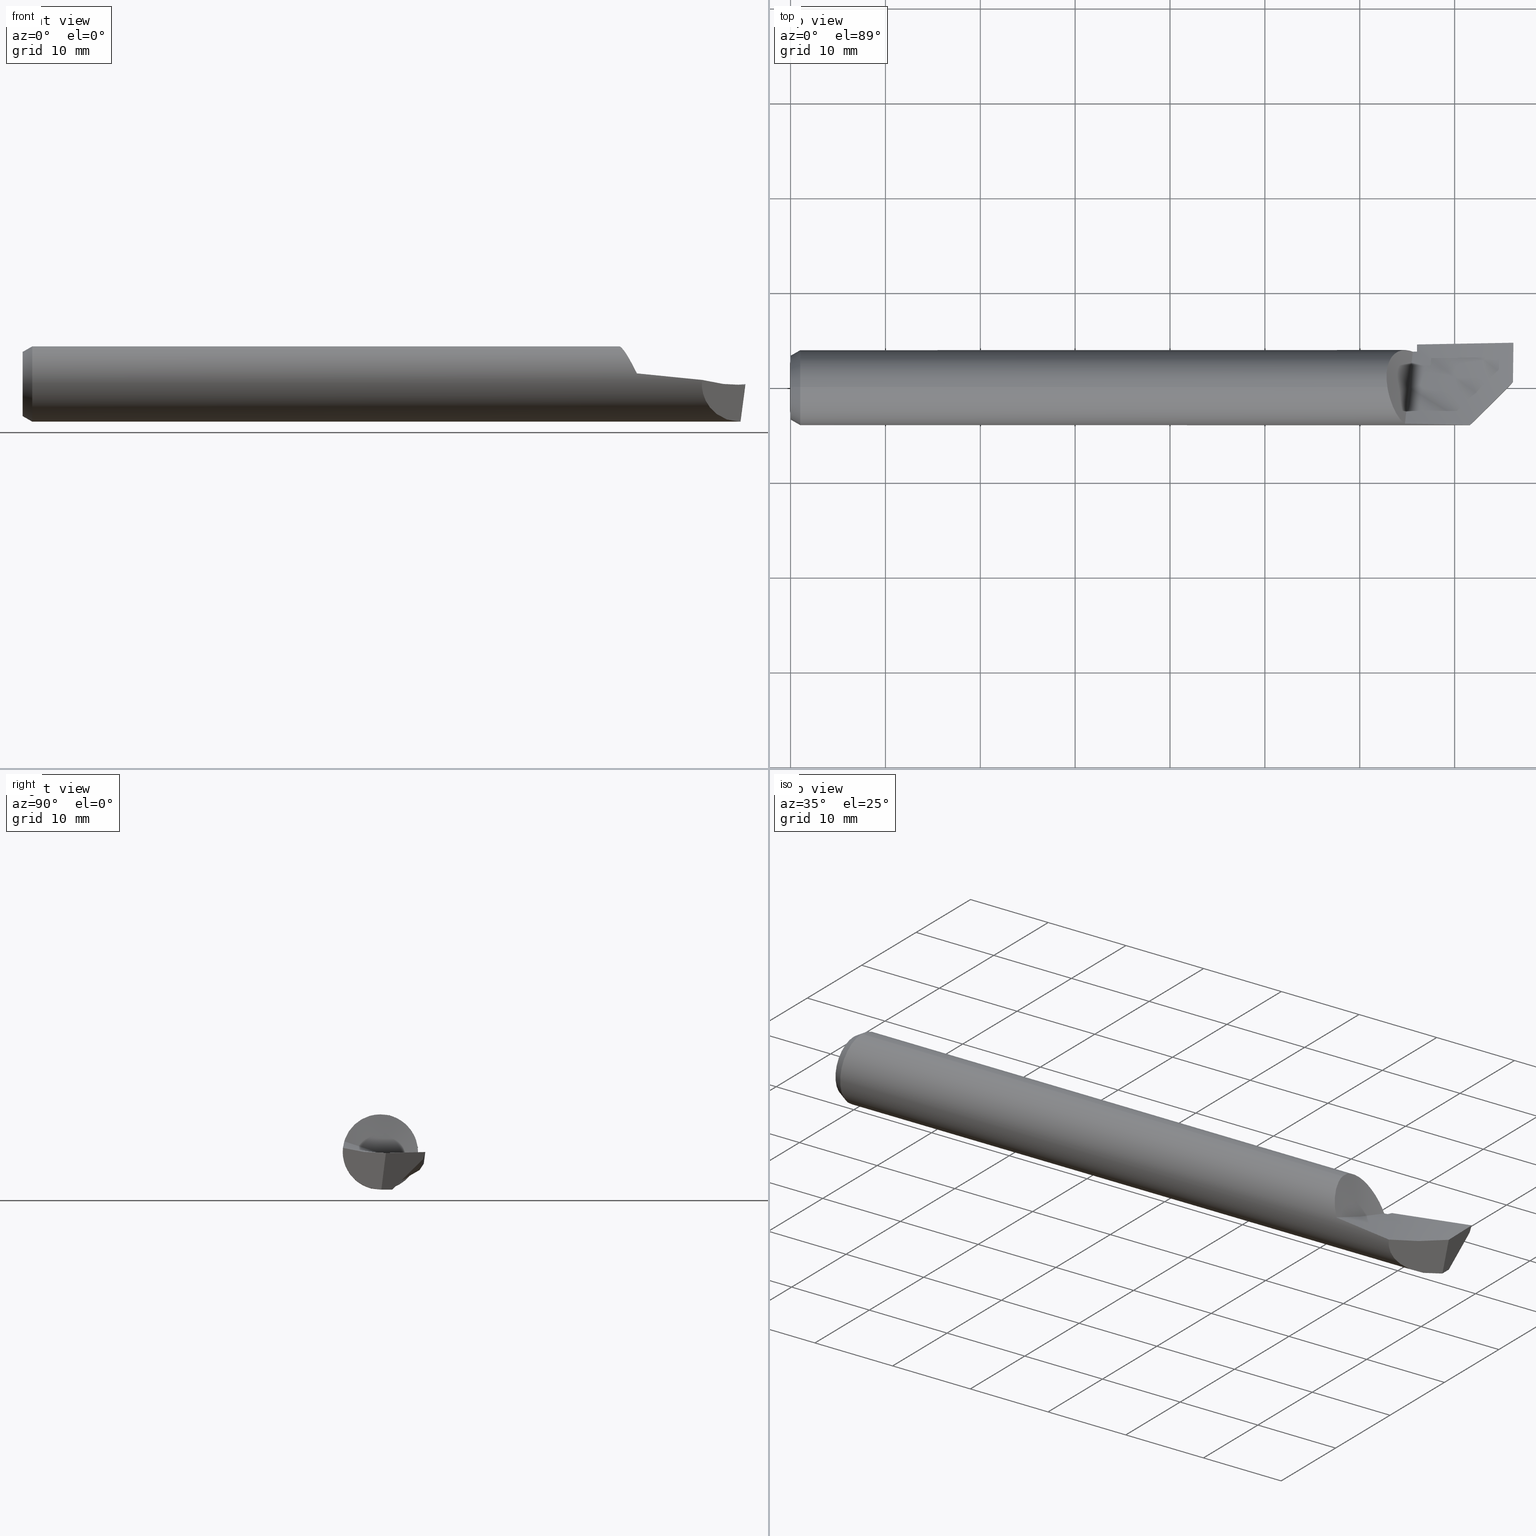
[diagram: canonical four-view strip — front | top / right | iso, engineering-drawing reading convention]
A machine part, canonical four-view strip (front | top / right | iso — engineering-drawing reading convention). The complete STEP part file that produces these views, byte-faithful:
ISO-10303-21;
HEADER;
FILE_DESCRIPTION (( 'STEP AP203' ),
    '1' );
FILE_NAME ('215772-HB360.STEP',
    '2024-08-07T22:41:28',
    ( '' ),
    ( '' ),
    'SwSTEP 2.0',
    'SolidWorks 2024',
    '' );
FILE_SCHEMA (( 'CONFIG_CONTROL_DESIGN' ));
ENDSEC;

DATA;
#1 = APPROVAL ( #636, 'UNSPECIFIED' ) ;
#2 = CARTESIAN_POINT ( 'NONE',  ( 2.128181818181820617, 0.1324743640790765620, -0.1207971729350410250 ) ) ;
#3 = CARTESIAN_POINT ( 'NONE',  ( 0.04000000000000000083, 0.000000000000000000, -0.1561500000000000110 ) ) ;
#4 = EDGE_LOOP ( 'NONE', ( #140, #310, #394, #269, #207, #154, #348 ) ) ;
#5 = CARTESIAN_POINT ( 'NONE',  ( 2.782045454545454266, 0.1724390602931637761, -0.05541315984177058035 ) ) ;
#6 = CARTESIAN_POINT ( 'NONE',  ( 2.804857864376268051, -0.1702863762866016761, -0.2000000000000000111 ) ) ;
#7 = LINE ( 'NONE', #101, #234 ) ;
#8 = VERTEX_POINT ( 'NONE', #78 ) ;
#9 = CARTESIAN_POINT ( 'NONE',  ( 3.000000000000000444, 0.1767524091130130426, -0.02999999999999999889 ) ) ;
#10 = DIRECTION ( 'NONE',  ( 0.000000000000000000, 0.000000000000000000, 1.000000000000000000 ) ) ;
#11 = CARTESIAN_POINT ( 'NONE',  ( 2.979167479753610959, -0.004181631245437337011, -0.1561499999999999833 ) ) ;
#12 = ORIENTED_EDGE ( 'NONE', *, *, #420, .F. ) ;
#13 = CARTESIAN_POINT ( 'NONE',  ( 2.560578031082944683, -0.05176212802823586950, 0.008916131412481789059 ) ) ;
#14 = APPROVAL_STATUS ( 'not_yet_approved' ) ;
#15 = APPROVAL ( #14, 'UNSPECIFIED' ) ;
#16 = CARTESIAN_POINT ( 'NONE',  ( 2.549711564589114410, -0.1497855914563588076, 0.04412594579240443349 ) ) ;
#17 = VERTEX_POINT ( 'NONE', #379 ) ;
#18 = CARTESIAN_POINT ( 'NONE',  ( 2.782045454545454266, -0.04184780308679218741, -0.2158262964618125335 ) ) ;
#19 = COORDINATED_UNIVERSAL_TIME_OFFSET ( 8, 0, .BEHIND. ) ;
#20 = CIRCLE ( 'NONE', #270, 0.1561500000000000110 ) ;
#21 = CARTESIAN_POINT ( 'NONE',  ( 2.499957748800047952, -0.08122262966647500471, 0.1334482376194530140 ) ) ;
#22 =( BOUNDED_SURFACE ( )  B_SPLINE_SURFACE ( 3, 2, ( 
 ( #569, #418, #618, #565, #324 ),
 ( #524, #204, #72, #271, #472 ),
 ( #24, #375, #306, #403, #605 ),
 ( #155, #548, #442, #493, #43 ) ),
 .UNSPECIFIED., .F., .F., .F. ) 
 B_SPLINE_SURFACE_WITH_KNOTS ( ( 4, 4 ),
 ( 3, 2, 3 ),
 ( 0.000000000000000000, 1.000000000000000000 ),
 ( 0.000000000000000000, 0.5000000000000000000, 1.000000000000000000 ),
 .UNSPECIFIED. ) 
 GEOMETRIC_REPRESENTATION_ITEM ( )  RATIONAL_B_SPLINE_SURFACE ( (
 ( 1.000000000000000000, 0.9898214418809326842, 1.000000000000000000, 0.9898214418809326842, 1.000000000000000000),
 ( 0.9988253187909595932, 0.9886587172328499262, 0.9988253187909595932, 0.9886587172328499262, 0.9988253187909595932),
 ( 0.9988253187909595932, 0.9886587172328499262, 0.9988253187909595932, 0.9886587172328499262, 0.9988253187909595932),
 ( 1.000000000000000000, 0.9898214418809326842, 1.000000000000000000, 0.9898214418809326842, 1.000000000000000000) ) ) 
 REPRESENTATION_ITEM ( '' )  SURFACE ( )  );
#23 = ORIENTED_EDGE ( 'NONE', *, *, #346, .F. ) ;
#24 = CARTESIAN_POINT ( 'NONE',  ( 3.000000000000000444, 0.07920971282789854295, -0.006742037143730742789 ) ) ;
#25 = PERSON_AND_ORGANIZATION_ROLE ( 'creator' ) ;
#26 = ADVANCED_FACE ( 'NONE', ( #275 ), #567, .T. ) ;
#27 = CARTESIAN_POINT ( 'NONE',  ( 2.546193584208285898, 0.1559074537376650971, 0.008704202966175364833 ) ) ;
#28 = CARTESIAN_POINT ( 'NONE',  ( 2.474000000000000643, 0.06150111405910223261, 0.1435285179659056831 ) ) ;
#29 = PLANE ( 'NONE',  #308 ) ;
#30 = CARTESIAN_POINT ( 'NONE',  ( 2.500135511449753434, 0.1325474058684388834, 0.08268720822116516767 ) ) ;
#31 = COORDINATED_UNIVERSAL_TIME_OFFSET ( 8, 0, .BEHIND. ) ;
#32 = PLANE ( 'NONE',  #450 ) ;
#33 = CALENDAR_DATE ( 2024, 7, 8 ) ;
#34 = AXIS2_PLACEMENT_3D ( 'NONE', #345, #596, #641 ) ;
#35 = FACE_OUTER_BOUND ( 'NONE', #604, .T. ) ;
#36 = ORIENTED_EDGE ( 'NONE', *, *, #575, .F. ) ;
#37 =( BOUNDED_CURVE ( )  B_SPLINE_CURVE ( 1, ( #255, #169 ),
 .UNSPECIFIED., .F., .T. ) 
 B_SPLINE_CURVE_WITH_KNOTS ( ( 2, 2 ),
 ( 0.001657282124398283714, 0.001764347607735772608 ),
 .UNSPECIFIED. ) 
 CURVE ( )  GEOMETRIC_REPRESENTATION_ITEM ( )  RATIONAL_B_SPLINE_CURVE ( ( 0.9984501799089120500, 0.9984501799089120500 ) ) 
 REPRESENTATION_ITEM ( '' )  );
#38 = CARTESIAN_POINT ( 'NONE',  ( 2.476619656254255730, 0.002176942633586646976, 0.1561357713750955445 ) ) ;
#39 = ORIENTED_EDGE ( 'NONE', *, *, #231, .F. ) ;
#40 = B_SPLINE_CURVE_WITH_KNOTS ( 'NONE', 3,
 ( #478, #568, #176, #477, #174, #273, #627 ),
 .UNSPECIFIED., .F., .F.,
 ( 4, 3, 4 ),
 ( 5.280409643342518424E-18, 0.0004086313786607042578, 0.0008172652846989271556 ),
 .UNSPECIFIED. ) ;
#41 = DIRECTION ( 'NONE',  ( 1.000000000000000000, 0.000000000000000000, 0.000000000000000000 ) ) ;
#42 = EDGE_CURVE ( 'NONE', #553, #341, #40, .T. ) ;
#43 = CARTESIAN_POINT ( 'NONE',  ( 2.128181818181820173, 0.2011086442068616142, -0.1260848984708513587 ) ) ;
#44 = CARTESIAN_POINT ( 'NONE',  ( 2.600000000000000089, 0.1801148075100197643, -0.04833233269983021330 ) ) ;
#45 = VECTOR ( 'NONE', #309, 39.37007874015748143 ) ;
#46 = EDGE_CURVE ( 'NONE', #539, #244, #427, .T. ) ;
#47 = EDGE_LOOP ( 'NONE', ( #634, #608, #302, #519, #550 ) ) ;
#48 = CARTESIAN_POINT ( 'NONE',  ( 2.599999999999999645, 0.1629539527568800439, -0.07474906961402545680 ) ) ;
#49 = CARTESIAN_POINT ( 'NONE',  ( 2.505010119772321797, -0.09244226076251919888, 0.1258585901727118650 ) ) ;
#50 = CC_DESIGN_DATE_AND_TIME_ASSIGNMENT ( #73, #384, ( #129 ) ) ;
#51 = ORIENTED_EDGE ( 'NONE', *, *, #435, .T. ) ;
#52 = CARTESIAN_POINT ( 'NONE',  ( 2.819928967951467413, -0.1552152727114021191, 0.01705994188532067996 ) ) ;
#53 = CARTESIAN_POINT ( 'NONE',  ( 2.968777685652530085, -0.006366555010340419797, -0.2406095737322578310 ) ) ;
#54 = AXIS2_PLACEMENT_3D ( 'NONE', #638, #290, #540 ) ;
#55 = ORIENTED_EDGE ( 'NONE', *, *, #421, .F. ) ;
#56 = CARTESIAN_POINT ( 'NONE',  ( 2.580000000000000515, 0.000000000000000000, 0.000000000000000000 ) ) ;
#57 = DIRECTION ( 'NONE',  ( -1.000000000000000000, -0.000000000000000000, -0.000000000000000000 ) ) ;
#58 = PLANE ( 'NONE',  #601 ) ;
#59 = ORIENTED_EDGE ( 'NONE', *, *, #90, .F. ) ;
#60 = CARTESIAN_POINT ( 'NONE',  ( 2.474000000000001087, -0.1123263664135756568, 0.1989575721241374495 ) ) ;
#61 = LINE ( 'NONE', #11, #298 ) ;
#62 = EDGE_LOOP ( 'NONE', ( #262, #487, #446, #94 ) ) ;
#63 = CARTESIAN_POINT ( 'NONE',  ( 2.975144240662870310, -8.537024980200822558E-17, -0.1561499999999999833 ) ) ;
#64 = VERTEX_POINT ( 'NONE', #428 ) ;
#65 = EDGE_CURVE ( 'NONE', #553, #370, #175, .T. ) ;
#66 = CARTESIAN_POINT ( 'NONE',  ( 2.346136363636365019, 0.1498423755230924859, -0.1017502348696824044 ) ) ;
#67 = DIRECTION ( 'NONE',  ( 0.000000000000000000, 0.000000000000000000, 1.000000000000000000 ) ) ;
#68 = CARTESIAN_POINT ( 'NONE',  ( 2.498284257610984493, -0.07716589290149372671, 0.1358296653781201901 ) ) ;
#69 = VERTEX_POINT ( 'NONE', #227 ) ;
#70 = ADVANCED_FACE ( 'NONE', ( #425 ), #29, .F. ) ;
#71 = EDGE_CURVE ( 'NONE', #244, #98, #516, .T. ) ;
#72 = CARTESIAN_POINT ( 'NONE',  ( 2.564090909090910309, -0.07790061426321408244, 0.01584701765442171964 ) ) ;
#73 = DATE_AND_TIME ( #33, #164 ) ;
#74 = AXIS2_PLACEMENT_3D ( 'NONE', #497, #251, #10 ) ;
#75 = CARTESIAN_POINT ( 'NONE',  ( 2.506199381127250714, 0.1385826786866950211, 0.07199824985563685331 ) ) ;
#76 = APPROVAL_DATE_TIME ( #562, #15 ) ;
#77 = CARTESIAN_POINT ( 'NONE',  ( 2.570103109311277834, 0.1548465186791669612, -0.02667729090926552332 ) ) ;
#78 = CARTESIAN_POINT ( 'NONE',  ( 2.979239712941758267, 0.004095472278887343082, -0.1561500000000000665 ) ) ;
#79 = B_SPLINE_SURFACE_WITH_KNOTS ( 'NONE', 1, 3, ( 
 ( #60, #646, #396, #404 ),
 ( #307, #591, #95, #241 ) ),
 .UNSPECIFIED., .F., .F., .F.,
 ( 2, 2 ),
 ( 4, 4 ),
 ( 0.000000000000000000, 1.000000000000000000 ),
 ( 0.01624622364842142827, 0.02484700585296300765 ),
 .UNSPECIFIED. ) ;
#80 =( GEOMETRIC_REPRESENTATION_CONTEXT ( 3 ) GLOBAL_UNCERTAINTY_ASSIGNED_CONTEXT ( ( #229 ) ) GLOBAL_UNIT_ASSIGNED_CONTEXT ( ( #566, #180, #264 ) ) REPRESENTATION_CONTEXT ( 'NONE', 'WORKASPACE' ) );
#81 = CARTESIAN_POINT ( 'NONE',  ( 2.474000000000000643, 0.02547145798119286250, 0.1540585191682444233 ) ) ;
#82 = CARTESIAN_POINT ( 'NONE',  ( 2.512539920035942842, 0.1436373927575289589, 0.06124721510615294823 ) ) ;
#83 =( BOUNDED_CURVE ( )  B_SPLINE_CURVE ( 2, ( #111, #376, #233 ),
 .UNSPECIFIED., .F., .F. ) 
 B_SPLINE_CURVE_WITH_KNOTS ( ( 3, 3 ),
 ( 1.391586369554531268E-17, 0.01023568902732469380 ),
 .UNSPECIFIED. ) 
 CURVE ( )  GEOMETRIC_REPRESENTATION_ITEM ( )  RATIONAL_B_SPLINE_CURVE ( ( 0.9996624973940649861, 0.9903321612512544503, 0.9981132003712964718 ) ) 
 REPRESENTATION_ITEM ( '' )  );
#84 = CIRCLE ( 'NONE', #138, 0.1330559892324149063 ) ;
#85 = CARTESIAN_POINT ( 'NONE',  ( 2.985096961511465974, 0.09213733410839580751, -0.1147056598190209775 ) ) ;
#86 = VERTEX_POINT ( 'NONE', #44 ) ;
#87 = EDGE_CURVE ( 'NONE', #211, #89, #476, .T. ) ;
#88 = CARTESIAN_POINT ( 'NONE',  ( 2.600000000000000089, 0.000000000000000000, -0.1561499999999999833 ) ) ;
#89 = VERTEX_POINT ( 'NONE', #88 ) ;
#90 = EDGE_CURVE ( 'NONE', #650, #109, #189, .T. ) ;
#91 = CARTESIAN_POINT ( 'NONE',  ( 2.599999999999999645, 0.1629539527568800439, -0.07474906961402545680 ) ) ;
#92 = ORIENTED_EDGE ( 'NONE', *, *, #119, .F. ) ;
#93 = CARTESIAN_POINT ( 'NONE',  ( 2.589990705502679180, 0.02455143824769707300, -0.1542112376162947385 ) ) ;
#94 = ORIENTED_EDGE ( 'NONE', *, *, #274, .F. ) ;
#95 = CARTESIAN_POINT ( 'NONE',  ( 2.573012375995140655, 0.06108246571269328878, -0.02440637148621309024 ) ) ;
#96 = CARTESIAN_POINT ( 'NONE',  ( 2.582283871512121465, 0.1499736465472803204, -0.04348250040316673642 ) ) ;
#97 = CIRCLE ( 'NONE', #630, 0.1561500000000000110 ) ;
#98 = VERTEX_POINT ( 'NONE', #96 ) ;
#99 = CARTESIAN_POINT ( 'NONE',  ( 2.782045454545454266, 0.1724390602931637761, -0.05541315984177058035 ) ) ;
#100 = CC_DESIGN_PERSON_AND_ORGANIZATION_ASSIGNMENT ( #419, #125, ( #215 ) ) ;
#101 = CARTESIAN_POINT ( 'NONE',  ( 2.737572120331434267, -0.2375721203314352381, -0.1561499999999999833 ) ) ;
#102 = ORIENTED_EDGE ( 'NONE', *, *, #535, .F. ) ;
#103 = DIRECTION ( 'NONE',  ( -0.7071067811865454633, 0.7071067811865495711, 0.000000000000000000 ) ) ;
#104 = DIRECTION ( 'NONE',  ( 0.000000000000000000, -0.8726360304336866491, -0.4883711277183958588 ) ) ;
#105 = ORIENTED_EDGE ( 'NONE', *, *, #535, .T. ) ;
#106 = DIRECTION ( 'NONE',  ( 0.8660254037844379305, 6.123233995736780827E-17, 0.5000000000000012212 ) ) ;
#107 = CARTESIAN_POINT ( 'NONE',  ( 2.564090909090910309, -0.1501971394746929034, 0.04270411916460870039 ) ) ;
#108 = CARTESIAN_POINT ( 'NONE',  ( 2.474000000000000643, 1.349892571595077140, 3.760676803801734192 ) ) ;
#109 = VERTEX_POINT ( 'NONE', #488 ) ;
#110 = CARTESIAN_POINT ( 'NONE',  ( 2.128181818181820617, -0.1264235424471495395, -0.1771169651606577522 ) ) ;
#111 = CARTESIAN_POINT ( 'NONE',  ( 3.000000000000000444, 0.1864868806062437434, -4.037734218147528297E-05 ) ) ;
#112 = LOCAL_TIME ( 15, 41, 28.00000000000000000, #19 ) ;
#113 = CARTESIAN_POINT ( 'NONE',  ( 2.540498801430727926, -0.1443827811110817705, 0.06246705499708574139 ) ) ;
#114 = EDGE_CURVE ( 'NONE', #406, #539, #392, .T. ) ;
#115 = ORIENTED_EDGE ( 'NONE', *, *, #274, .T. ) ;
#116 = LINE ( 'NONE', #222, #327 ) ;
#117 = PERSON_AND_ORGANIZATION ( #609, #332 ) ;
#118 = CARTESIAN_POINT ( 'NONE',  ( 2.517551476721962889, -0.1163640086471308260, 0.1054476979916383617 ) ) ;
#119 = EDGE_CURVE ( 'NONE', #370, #86, #536, .T. ) ;
#120 = ORIENTED_EDGE ( 'NONE', *, *, #87, .F. ) ;
#121 = CARTESIAN_POINT ( 'NONE',  ( 2.582283871512121465, 0.1499736465472803204, -0.04348250040316673642 ) ) ;
#122 = DIRECTION ( 'NONE',  ( 1.000000000000000000, 0.000000000000000000, 0.000000000000000000 ) ) ;
#123 = CC_DESIGN_PERSON_AND_ORGANIZATION_ASSIGNMENT ( #213, #615, ( #279 ) ) ;
#124 = CARTESIAN_POINT ( 'NONE',  ( 2.544874160947927066, 0.1557873653749910214, 0.01066923407101593585 ) ) ;
#125 = PERSON_AND_ORGANIZATION_ROLE ( 'design_owner' ) ;
#126 = CARTESIAN_POINT ( 'NONE',  ( 2.486355294223542955, 0.1113227750659395027, 0.1095010359794384297 ) ) ;
#127 = CARTESIAN_POINT ( 'NONE',  ( 0.04000000000000000083, 0.000000000000000000, 0.000000000000000000 ) ) ;
#128 = CARTESIAN_POINT ( 'NONE',  ( 2.474000000000000643, 0.03748155904931676358, 0.1505493601599168507 ) ) ;
#129 = PRODUCT_DEFINITION ( 'UNKNOWN', '', #532, #538 ) ;
#130 =( BOUNDED_CURVE ( )  B_SPLINE_CURVE ( 2, ( #202, #647, #501 ),
 .UNSPECIFIED., .F., .T. ) 
 B_SPLINE_CURVE_WITH_KNOTS ( ( 3, 3 ),
 ( 0.4584876418422945132, 0.4789440018135112109 ),
 .UNSPECIFIED. ) 
 CURVE ( )  GEOMETRIC_REPRESENTATION_ITEM ( )  RATIONAL_B_SPLINE_CURVE ( ( 0.9979508522174694862, 0.9982979626574873810, 0.9986791308289277858 ) ) 
 REPRESENTATION_ITEM ( '' )  );
#131 = AXIS2_PLACEMENT_3D ( 'NONE', #551, #200, #354 ) ;
#132 = LOCAL_TIME ( 15, 41, 28.00000000000000000, #143 ) ;
#133 = DIRECTION ( 'NONE',  ( 1.000000000000000000, 0.000000000000000000, 0.000000000000000000 ) ) ;
#134 = CARTESIAN_POINT ( 'NONE',  ( 2.476785514785512454, 0.001089468900831919596, 0.1561471461142987516 ) ) ;
#135 = ADVANCED_FACE ( 'NONE', ( #388 ), #542, .F. ) ;
#136 = EDGE_CURVE ( 'NONE', #167, #144, #572, .T. ) ;
#137 = EDGE_LOOP ( 'NONE', ( #507, #55, #150, #315, #492 ) ) ;
#138 = AXIS2_PLACEMENT_3D ( 'NONE', #438, #633, #141 ) ;
#139 = CARTESIAN_POINT ( 'NONE',  ( 2.600000000000000089, 0.02556539549897754102, -0.1540429584660748530 ) ) ;
#140 = ORIENTED_EDGE ( 'NONE', *, *, #165, .F. ) ;
#141 = DIRECTION ( 'NONE',  ( 0.000000000000000000, 0.000000000000000000, 1.000000000000000000 ) ) ;
#142 = CC_DESIGN_APPROVAL ( #1, ( #279 ) ) ;
#143 = COORDINATED_UNIVERSAL_TIME_OFFSET ( 8, 0, .BEHIND. ) ;
#144 = VERTEX_POINT ( 'NONE', #347 ) ;
#145 = CARTESIAN_POINT ( 'NONE',  ( 2.579999513120112553, 0.1192716980534744009, -0.1007823622599925417 ) ) ;
#146 = DIRECTION ( 'NONE',  ( 0.1218739150664907706, 0.000000000000000000, 0.9925455903012041503 ) ) ;
#147 = CALENDAR_DATE ( 2024, 7, 8 ) ;
#148 = DIRECTION ( 'NONE',  ( 0.000000000000000000, -1.000000000000000000, -0.000000000000000000 ) ) ;
#149 = CARTESIAN_POINT ( 'NONE',  ( 2.501823410091131628, -0.08546690293869278754, 0.1306840455922446131 ) ) ;
#150 = ORIENTED_EDGE ( 'NONE', *, *, #71, .F. ) ;
#151 = CARTESIAN_POINT ( 'NONE',  ( 2.589990705502679624, 0.1199397604736753414, -0.09999166357600632049 ) ) ;
#152 = CARTESIAN_POINT ( 'NONE',  ( 2.819928967951467413, -0.1552152727114021191, 0.01705994188532067996 ) ) ;
#153 = EDGE_CURVE ( 'NONE', #211, #557, #353, .T. ) ;
#154 = ORIENTED_EDGE ( 'NONE', *, *, #592, .T. ) ;
#155 = CARTESIAN_POINT ( 'NONE',  ( 3.000000000000000444, 0.2373499999999985066, 0.002658175526120084165 ) ) ;
#156 = CARTESIAN_POINT ( 'NONE',  ( 0.04000000000000000083, 0.000000000000000000, 0.1561500000000000110 ) ) ;
#157 = FACE_OUTER_BOUND ( 'NONE', #203, .T. ) ;
#158 = VERTEX_POINT ( 'NONE', #145 ) ;
#159 = CARTESIAN_POINT ( 'NONE',  ( 2.556905971611344253, -0.1499947349777528416, 0.04341600778453380549 ) ) ;
#160 = EDGE_CURVE ( 'NONE', #109, #650, #84, .T. ) ;
#161 = DIRECTION ( 'NONE',  ( 0.000000000000000000, -0.000000000000000000, 1.000000000000000000 ) ) ;
#162 = ORIENTED_EDGE ( 'NONE', *, *, #328, .F. ) ;
#163 = DIRECTION ( 'NONE',  ( -1.000000000000000000, -0.000000000000000000, -0.000000000000000000 ) ) ;
#164 = LOCAL_TIME ( 15, 41, 28.00000000000000000, #31 ) ;
#165 = EDGE_CURVE ( 'NONE', #341, #167, #178, .T. ) ;
#166 = CARTESIAN_POINT ( 'NONE',  ( 2.502877942230568031, -0.08783408679770984828, 0.1291095507297915501 ) ) ;
#167 = VERTEX_POINT ( 'NONE', #444 ) ;
#168 = B_SPLINE_CURVE_WITH_KNOTS ( 'NONE', 3,
 ( #272, #570, #367, #219 ),
 .UNSPECIFIED., .F., .F.,
 ( 4, 4 ),
 ( 0.0005095947452886268611, 0.01017712462416844182 ),
 .UNSPECIFIED. ) ;
#169 = CARTESIAN_POINT ( 'NONE',  ( 2.599999999999999645, 0.02556539549897754102, -0.1540429584660748530 ) ) ;
#170 = CARTESIAN_POINT ( 'NONE',  ( 0.000000000000000000, 0.000000000000000000, 0.000000000000000000 ) ) ;
#171 = CARTESIAN_POINT ( 'NONE',  ( 2.511672470574308313, 0.1430136215965724933, 0.06269466459209889486 ) ) ;
#172 = AXIS2_PLACEMENT_3D ( 'NONE', #127, #133, #624 ) ;
#173 = CARTESIAN_POINT ( 'NONE',  ( 2.571411973264259299, 0.04841661111627026254, -0.02036257395250182928 ) ) ;
#174 = CARTESIAN_POINT ( 'NONE',  ( 2.998726420138195792, 0.1832357286974946597, -0.01018139235324622485 ) ) ;
#175 =( BOUNDED_CURVE ( )  B_SPLINE_CURVE ( 2, ( #527, #230, #280 ),
 .UNSPECIFIED., .F., .T. ) 
 B_SPLINE_CURVE_WITH_KNOTS ( ( 3, 3 ),
 ( 0.004424341884183831224, 0.4584876418422946243 ),
 .UNSPECIFIED. ) 
 CURVE ( )  GEOMETRIC_REPRESENTATION_ITEM ( )  RATIONAL_B_SPLINE_CURVE ( ( 0.9998214602619788227, 0.9907416250752665299, 0.9984501799089120500 ) ) 
 REPRESENTATION_ITEM ( '' )  );
#176 = CARTESIAN_POINT ( 'NONE',  ( 2.997453422640945941, 0.1799655222702826463, -0.02031631032486567665 ) ) ;
#177 = CARTESIAN_POINT ( 'NONE',  ( 2.474000000000000643, 0.04949152363394359461, 0.1470393756611323155 ) ) ;
#178 = B_SPLINE_CURVE_WITH_KNOTS ( 'NONE', 3,
 ( #642, #196, #340, #545 ),
 .UNSPECIFIED., .F., .F.,
 ( 4, 4 ),
 ( 1.050051182065026517E-16, 0.004157109554051055880 ),
 .UNSPECIFIED. ) ;
#179 = CARTESIAN_POINT ( 'NONE',  ( 2.530426422836763667, 0.1527701578465625876, 0.03262291395069640693 ) ) ;
#180 =( NAMED_UNIT ( * ) PLANE_ANGLE_UNIT ( ) SI_UNIT ( $, .RADIAN. ) );
#181 = VECTOR ( 'NONE', #621, 39.37007874015748143 ) ;
#182 = ADVANCED_FACE ( 'NONE', ( #593 ), #32, .F. ) ;
#183 = CARTESIAN_POINT ( 'NONE',  ( 0.04000000000000000083, 0.000000000000000000, 0.000000000000000000 ) ) ;
#184 = COORDINATED_UNIVERSAL_TIME_OFFSET ( 8, 0, .BEHIND. ) ;
#185 = CC_DESIGN_PERSON_AND_ORGANIZATION_ASSIGNMENT ( #525, #537, ( #129 ) ) ;
#186 = PLANE ( 'NONE',  #252 ) ;
#187 = DATE_AND_TIME ( #147, #192 ) ;
#188 = ORIENTED_EDGE ( 'NONE', *, *, #390, .F. ) ;
#189 = CIRCLE ( 'NONE', #276, 0.1330559892324149063 ) ;
#190 = CARTESIAN_POINT ( 'NONE',  ( 0.000000000000000000, 0.000000000000000000, 0.000000000000000000 ) ) ;
#191 = DIRECTION ( 'NONE',  ( 0.000000000000000000, 0.000000000000000000, -1.000000000000000000 ) ) ;
#192 = LOCAL_TIME ( 15, 41, 28.00000000000000000, #643 ) ;
#193 = DATE_AND_TIME ( #594, #132 ) ;
#194 = EDGE_LOOP ( 'NONE', ( #583, #197 ) ) ;
#195 = DIRECTION ( 'NONE',  ( -0.7071067811865495711, -0.7071067811865454633, 0.000000000000000000 ) ) ;
#196 = CARTESIAN_POINT ( 'NONE',  ( 2.999200075335385574, 0.1319941842925820563, -0.002682091860404221123 ) ) ;
#197 = ORIENTED_EDGE ( 'NONE', *, *, #46, .T. ) ;
#198 = CARTESIAN_POINT ( 'NONE',  ( 2.691375166124812424, -0.1537828221736176615, 0.03009270614455665169 ) ) ;
#199 = ORIENTED_EDGE ( 'NONE', *, *, #395, .T. ) ;
#200 = DIRECTION ( 'NONE',  ( -1.000000000000000000, 0.000000000000000000, 0.000000000000000000 ) ) ;
#201 = ADVANCED_FACE ( 'NONE', ( #232 ), #622, .T. ) ;
#202 = CARTESIAN_POINT ( 'NONE',  ( 2.600000000000000533, 0.1504703987832132495, -0.04173106265146870469 ) ) ;
#203 = EDGE_LOOP ( 'NONE', ( #162, #199, #115, #319, #460, #617, #12 ) ) ;
#204 = CARTESIAN_POINT ( 'NONE',  ( 2.782045454545455154, -0.08017907142647504037, 0.004646600234496320661 ) ) ;
#205 = PLANE ( 'NONE',  #496 ) ;
#206 = PLANE ( 'NONE',  #382 ) ;
#207 = ORIENTED_EDGE ( 'NONE', *, *, #421, .T. ) ;
#208 = CARTESIAN_POINT ( 'NONE',  ( 2.564090909090910309, -0.07140288522278762096, -0.2055601114381612471 ) ) ;
#209 = CARTESIAN_POINT ( 'NONE',  ( 2.549711564589114410, -0.1497855914563588076, 0.04412594579240443349 ) ) ;
#210 = DIRECTION ( 'NONE',  ( -0.008726535498366603735, -0.9999619230641711987, 0.000000000000000000 ) ) ;
#211 = VERTEX_POINT ( 'NONE', #139 ) ;
#212 = CARTESIAN_POINT ( 'NONE',  ( 2.549711564589114410, -0.1497855914563588076, 0.04412594579240443349 ) ) ;
#213 = PERSON_AND_ORGANIZATION ( #609, #332 ) ;
#214 = CARTESIAN_POINT ( 'NONE',  ( 2.532224346154069661, -0.1359750068588518879, 0.07855314780389449636 ) ) ;
#215 = PRODUCT ( '215772-HB360', '215772-HB360', '', ( #372 ) ) ;
#216 = ORIENTED_EDGE ( 'NONE', *, *, #346, .T. ) ;
#217 = VECTOR ( 'NONE', #57, 39.37007874015748143 ) ;
#218 = APPROVAL ( #521, 'UNSPECIFIED' ) ;
#219 = CARTESIAN_POINT ( 'NONE',  ( 2.979633204848194605, 0.04918517867426422385, -0.1561499999999999833 ) ) ;
#220 = CARTESIAN_POINT ( 'NONE',  ( 2.533383541282527851, 0.1536844611678430672, 0.02805558010066474747 ) ) ;
#221 =( BOUNDED_CURVE ( )  B_SPLINE_CURVE ( 1, ( #297, #48 ),
 .UNSPECIFIED., .F., .T. ) 
 B_SPLINE_CURVE_WITH_KNOTS ( ( 2, 2 ),
 ( 0.004551200217440484058, 0.005793522353016800422 ),
 .UNSPECIFIED. ) 
 CURVE ( )  GEOMETRIC_REPRESENTATION_ITEM ( )  RATIONAL_B_SPLINE_CURVE ( ( 0.9984501799089120500, 0.9984501799089120500 ) ) 
 REPRESENTATION_ITEM ( '' )  );
#222 = CARTESIAN_POINT ( 'NONE',  ( 0.04000000000000000083, 1.912285976868592483E-17, 0.1561500000000000110 ) ) ;
#223 = CALENDAR_DATE ( 2024, 7, 8 ) ;
#224 = B_SPLINE_CURVE_WITH_KNOTS ( 'NONE', 3,
 ( #121, #173, #13, #212 ),
 .UNSPECIFIED., .F., .F.,
 ( 4, 4 ),
 ( 0.000000000000000000, 1.000000000000000000 ),
 .UNSPECIFIED. ) ;
#225 = CARTESIAN_POINT ( 'NONE',  ( 2.558134112634480761, 0.1568671884456191989, -0.009044752416295072719 ) ) ;
#226 = VECTOR ( 'NONE', #455, 39.37007874015748854 ) ;
#227 = CARTESIAN_POINT ( 'NONE',  ( 2.600000000000000533, 0.1504703987832132495, -0.04173106265146870469 ) ) ;
#228 = CARTESIAN_POINT ( 'NONE',  ( 2.483884539742758246, 0.1057931689309994649, 0.1149010584309875377 ) ) ;
#229 = UNCERTAINTY_MEASURE_WITH_UNIT (LENGTH_MEASURE( 1.000000000000000082E-05 ), #566, 'distance_accuracy_value', 'NONE');
#230 = CARTESIAN_POINT ( 'NONE',  ( 2.798363536927614525, 0.1727047912246200134, -0.05349211378545535439 ) ) ;
#231 = EDGE_CURVE ( 'NONE', #339, #553, #533, .T. ) ;
#232 = FACE_OUTER_BOUND ( 'NONE', #399, .T. ) ;
#233 = CARTESIAN_POINT ( 'NONE',  ( 2.600000000000000089, 0.1801148075100197643, -0.04833233269983021330 ) ) ;
#234 = VECTOR ( 'NONE', #253, 39.37007874015748143 ) ;
#235 = VECTOR ( 'NONE', #506, 39.37007874015748143 ) ;
#236 = DIRECTION ( 'NONE',  ( -1.000000000000000000, -0.000000000000000000, -0.000000000000000000 ) ) ;
#237 = ORIENTED_EDGE ( 'NONE', *, *, #300, .T. ) ;
#238 = CARTESIAN_POINT ( 'NONE',  ( 2.599999999999999645, 0.02556539549897754102, -0.1540429584660748530 ) ) ;
#239 = CARTESIAN_POINT ( 'NONE',  ( 2.476948499428241135, -1.468170466680537180E-06, 0.1561645489842676260 ) ) ;
#240 = EDGE_LOOP ( 'NONE', ( #590, #499, #352, #305, #523 ) ) ;
#241 = CARTESIAN_POINT ( 'NONE',  ( 2.585147848957087380, 0.1772427866213460157, -0.04954200506429300849 ) ) ;
#242 = CARTESIAN_POINT ( 'NONE',  ( 2.819928967951467413, -0.1552152727114021191, 0.01705994188532067996 ) ) ;
#243 = CC_DESIGN_APPROVAL ( #218, ( #532 ) ) ;
#244 = VERTEX_POINT ( 'NONE', #485 ) ;
#245 = ADVANCED_FACE ( 'NONE', ( #35 ), #186, .F. ) ;
#246 = LINE ( 'NONE', #447, #434 ) ;
#247 = CARTESIAN_POINT ( 'NONE',  ( 2.502086359132448923, -0.08606151490315182284, 0.1302930665089117590 ) ) ;
#248 = SHAPE_DEFINITION_REPRESENTATION ( #429, #528 ) ;
#249 = ORIENTED_EDGE ( 'NONE', *, *, #577, .F. ) ;
#250 = EDGE_CURVE ( 'NONE', #69, #98, #130, .T. ) ;
#251 = DIRECTION ( 'NONE',  ( -1.000000000000000000, -0.000000000000000000, -0.000000000000000000 ) ) ;
#252 = AXIS2_PLACEMENT_3D ( 'NONE', #338, #517, #409 ) ;
#253 = DIRECTION ( 'NONE',  ( -0.7071067811865495711, -0.7071067811865454633, 0.000000000000000000 ) ) ;
#254 = ORIENTED_EDGE ( 'NONE', *, *, #640, .F. ) ;
#255 = CARTESIAN_POINT ( 'NONE',  ( 2.599999999999999645, 0.02191462996564209204, -0.1561499999999762522 ) ) ;
#256 = CARTESIAN_POINT ( 'NONE',  ( 2.579998539360336629, 0.02353294416580548054, -0.1543665217585545590 ) ) ;
#257 = CARTESIAN_POINT ( 'NONE',  ( 2.975144240662870310, -8.537024980200822558E-17, -0.1561499999999999833 ) ) ;
#258 = ORIENTED_EDGE ( 'NONE', *, *, #390, .T. ) ;
#259 = CARTESIAN_POINT ( 'NONE',  ( 2.128181818181820617, 0.1324743640790765620, -0.1207971729350410250 ) ) ;
#260 = CARTESIAN_POINT ( 'NONE',  ( 2.600000000000000089, 0.1205927109030021788, -0.09919788595096953876 ) ) ;
#261 = CARTESIAN_POINT ( 'NONE',  ( 2.809045380262193525, -0.1660988604006760627, -0.08196144063916532829 ) ) ;
#262 = ORIENTED_EDGE ( 'NONE', *, *, #295, .F. ) ;
#263 = FACE_OUTER_BOUND ( 'NONE', #356, .T. ) ;
#264 =( NAMED_UNIT ( * ) SI_UNIT ( $, .STERADIAN. ) SOLID_ANGLE_UNIT ( ) );
#265 = PLANE ( 'NONE',  #433 ) ;
#266 = EDGE_LOOP ( 'NONE', ( #560, #51, #387, #23 ) ) ;
#267 = CARTESIAN_POINT ( 'NONE',  ( 2.599999999999999645, 0.1603437587569023492, -0.04396905472439791712 ) ) ;
#268 = CARTESIAN_POINT ( 'NONE',  ( 2.490658629547397585, -0.05655788668014710696, 0.1458083473088507276 ) ) ;
#269 = ORIENTED_EDGE ( 'NONE', *, *, #250, .T. ) ;
#270 = AXIS2_PLACEMENT_3D ( 'NONE', #561, #554, #371 ) ;
#271 = CARTESIAN_POINT ( 'NONE',  ( 2.346136363636365463, -0.07562215709995309676, 0.02704743507434712382 ) ) ;
#272 = CARTESIAN_POINT ( 'NONE',  ( 2.600000000000000089, 0.02191462996564209204, -0.1561499999999762522 ) ) ;
#273 = CARTESIAN_POINT ( 'NONE',  ( 2.999363114576502287, 0.1848644870457145095, -0.005111888721734718193 ) ) ;
#274 = EDGE_CURVE ( 'NONE', #456, #144, #287, .T. ) ;
#275 = FACE_OUTER_BOUND ( 'NONE', #266, .T. ) ;
#276 = AXIS2_PLACEMENT_3D ( 'NONE', #190, #236, #343 ) ;
#277 = EDGE_CURVE ( 'NONE', #8, #167, #552, .T. ) ;
#278 = CARTESIAN_POINT ( 'NONE',  ( 2.502467126697850652, 0.1350678286782579507, 0.07851013573519423361 ) ) ;
#279 = SECURITY_CLASSIFICATION ( '', '', #514 ) ;
#280 = CARTESIAN_POINT ( 'NONE',  ( 2.599999999999999645, 0.1629539527568800439, -0.07474906961402545680 ) ) ;
#281 = ADVANCED_FACE ( 'NONE', ( #549 ), #265, .T. ) ;
#282 = CARTESIAN_POINT ( 'NONE',  ( 2.512192206402672934, 0.1433888270529893871, 0.06182690541186672967 ) ) ;
#283 = CC_DESIGN_DATE_AND_TIME_ASSIGNMENT ( #193, #649, ( #279 ) ) ;
#284 = DATE_AND_TIME ( #223, #112 ) ;
#285 = CLOSED_SHELL ( 'NONE', ( #26, #413, #301, #135, #70, #483, #245, #201, #369, #511, #281, #481, #623, #342, #484, #182 ) ) ;
#286 = APPLICATION_CONTEXT ( 'configuration controlled 3d designs of mechanical parts and assemblies' ) ;
#287 =( BOUNDED_CURVE ( )  B_SPLINE_CURVE ( 3, ( #257, #401, #261, #152 ),
 .UNSPECIFIED., .F., .T. ) 
 B_SPLINE_CURVE_WITH_KNOTS ( ( 4, 4 ),
 ( 4.712388980384689674, 6.392657381221441781 ),
 .UNSPECIFIED. ) 
 CURVE ( )  GEOMETRIC_REPRESENTATION_ITEM ( )  RATIONAL_B_SPLINE_CURVE ( ( 1.000000000000000000, 0.7782419256086312576, 0.7782419256086312576, 1.000000000000000000 ) ) 
 REPRESENTATION_ITEM ( '' )  );
#288 = CARTESIAN_POINT ( 'NONE',  ( 2.996181010008762247, 0.1766762837869673974, -0.03044511248921387067 ) ) ;
#289 = ORIENTED_EDGE ( 'NONE', *, *, #435, .F. ) ;
#290 = DIRECTION ( 'NONE',  ( -1.000000000000000000, -0.000000000000000000, -0.000000000000000000 ) ) ;
#291 = PERSON_AND_ORGANIZATION ( #609, #332 ) ;
#292 = ORIENTED_EDGE ( 'NONE', *, *, #465, .F. ) ;
#293 = CARTESIAN_POINT ( 'NONE',  ( 2.474000000000000643, 0.02547145798119286250, 0.1540585191682444233 ) ) ;
#294 = CARTESIAN_POINT ( 'NONE',  ( 2.599999999999999645, 0.1801148075100197643, -0.04833233269983021330 ) ) ;
#295 = EDGE_CURVE ( 'NONE', #8, #456, #7, .T. ) ;
#296 = ORIENTED_EDGE ( 'NONE', *, *, #42, .F. ) ;
#297 = CARTESIAN_POINT ( 'NONE',  ( 2.599999999999999645, 0.1205927109030021788, -0.09919788595096953876 ) ) ;
#298 = VECTOR ( 'NONE', #210, 39.37007874015748854 ) ;
#299 = CARTESIAN_POINT ( 'NONE',  ( 2.998042731244061176, 0.02289849058119090494, -0.004353902858523988652 ) ) ;
#300 = EDGE_CURVE ( 'NONE', #158, #557, #607, .T. ) ;
#301 = ADVANCED_FACE ( 'NONE', ( #157 ), #304, .T. ) ;
#302 = ORIENTED_EDGE ( 'NONE', *, *, #295, .T. ) ;
#303 = CARTESIAN_POINT ( 'NONE',  ( 2.564090909090910309, 0.1611407179081281726, -0.07858169735572649583 ) ) ;
#304 = CYLINDRICAL_SURFACE ( 'NONE', #578, 0.1561500000000000110 ) ;
#305 = ORIENTED_EDGE ( 'NONE', *, *, #373, .F. ) ;
#306 = CARTESIAN_POINT ( 'NONE',  ( 2.564090909090910309, 0.07410171153756761608, -0.02878489218893684823 ) ) ;
#307 = CARTESIAN_POINT ( 'NONE',  ( 2.548046913122900659, -0.1650197444016511250, 0.04964888797381136060 ) ) ;
#308 = AXIS2_PLACEMENT_3D ( 'NONE', #424, #334, #377 ) ;
#309 = DIRECTION ( 'NONE',  ( -1.000000000000000000, -0.000000000000000000, -0.000000000000000000 ) ) ;
#310 = ORIENTED_EDGE ( 'NONE', *, *, #640, .T. ) ;
#311 =( BOUNDED_CURVE ( )  B_SPLINE_CURVE ( 3, ( #407, #312, #267, #614 ),
 .UNSPECIFIED., .F., .T. ) 
 B_SPLINE_CURVE_WITH_KNOTS ( ( 4, 4 ),
 ( 0.0002464828109087476645, 0.001017863943357918402 ),
 .UNSPECIFIED. ) 
 CURVE ( )  GEOMETRIC_REPRESENTATION_ITEM ( )  RATIONAL_B_SPLINE_CURVE ( ( 0.9981132003712964718, 0.9980542875575426631, 0.9980001715062660761, 0.9979508522174668217 ) ) 
 REPRESENTATION_ITEM ( '' )  );
#312 = CARTESIAN_POINT ( 'NONE',  ( 2.600000000000000089, 0.1702252762638591654, -0.04616948661234135387 ) ) ;
#313 = CARTESIAN_POINT ( 'NONE',  ( 3.000000000000000444, 0.1864999999999999991, -1.224646799147315107E-19 ) ) ;
#314 = DIRECTION ( 'NONE',  ( -1.000000000000000000, 0.000000000000000000, 0.000000000000000000 ) ) ;
#315 = ORIENTED_EDGE ( 'NONE', *, *, #46, .F. ) ;
#316 = CARTESIAN_POINT ( 'NONE',  ( 0.000000000000000000, 0.000000000000000000, 0.000000000000000000 ) ) ;
#317 = PERSON_AND_ORGANIZATION_ROLE ( 'design_supplier' ) ;
#318 = CARTESIAN_POINT ( 'NONE',  ( 2.600000000000000089, 0.1629539527568800439, -0.07474906961402545680 ) ) ;
#319 = ORIENTED_EDGE ( 'NONE', *, *, #592, .F. ) ;
#320 = DIRECTION ( 'NONE',  ( 0.000000000000000000, 0.000000000000000000, -1.000000000000000000 ) ) ;
#321 = APPLICATION_PROTOCOL_DEFINITION ( 'international standard', 'config_control_design', 1994, #637 ) ;
#322 = CARTESIAN_POINT ( 'NONE',  ( 2.493511060004371949, -0.06488675223562817562, 0.1423317743175425698 ) ) ;
#323 = ORIENTED_EDGE ( 'NONE', *, *, #87, .T. ) ;
#324 = CARTESIAN_POINT ( 'NONE',  ( 2.128181818181820173, -0.1982344078280977029, 0.1305572975753192810 ) ) ;
#325 = CARTESIAN_POINT ( 'NONE',  ( 0.000000000000000000, 0.000000000000000000, -0.1330559892324149063 ) ) ;
#326 = CARTESIAN_POINT ( 'NONE',  ( 2.545516406032236834, 0.1558480006635081516, 0.009712146338426581524 ) ) ;
#327 = VECTOR ( 'NONE', #106, 39.37007874015748143 ) ;
#328 = EDGE_CURVE ( 'NONE', #89, #389, #612, .T. ) ;
#329 = CALENDAR_DATE ( 2024, 7, 8 ) ;
#330 = CARTESIAN_POINT ( 'NONE',  ( 2.517139034353681026, 0.1468619192973486254, 0.05360193212287041320 ) ) ;
#331 = CARTESIAN_POINT ( 'NONE',  ( 2.485929804153500289, 0.1104159039823333910, 0.1104154213718181871 ) ) ;
#332 = ORGANIZATION ( 'UNSPECIFIED', 'UNSPECIFIED', '' ) ;
#333 =( BOUNDED_SURFACE ( )  B_SPLINE_SURFACE ( 1, 2, ( 
 ( #313, #508, #349, #602, #458 ),
 ( #408, #99, #303, #500, #2 ) ),
 .UNSPECIFIED., .F., .F., .T. ) 
 B_SPLINE_SURFACE_WITH_KNOTS ( ( 2, 2 ),
 ( 3, 2, 3 ),
 ( 0.000000000000000000, 1.000000000000000000 ),
 ( 0.000000000000000000, 0.5000000000000000000, 1.000000000000000000 ),
 .UNSPECIFIED. ) 
 GEOMETRIC_REPRESENTATION_ITEM ( )  RATIONAL_B_SPLINE_SURFACE ( (
 ( 1.000000000000000000, 0.9898214418809326842, 1.000000000000000000, 0.9898214418809326842, 1.000000000000000000),
 ( 1.000000000000000000, 0.9898214418809326842, 1.000000000000000000, 0.9898214418809326842, 1.000000000000000000) ) ) 
 REPRESENTATION_ITEM ( '' )  SURFACE ( )  );
#334 = DIRECTION ( 'NONE',  ( 1.000000000000000000, 0.000000000000000000, 0.000000000000000000 ) ) ;
#335 = APPLICATION_PROTOCOL_DEFINITION ( 'international standard', 'config_control_design', 1994, #286 ) ;
#336 = CARTESIAN_POINT ( 'NONE',  ( 2.476375444890652311, 0.003805766995606102258, 0.1561102127129130601 ) ) ;
#337 = ORIENTED_EDGE ( 'NONE', *, *, #250, .F. ) ;
#338 = CARTESIAN_POINT ( 'NONE',  ( 0.000000000000000000, 0.000000000000000000, 0.000000000000000000 ) ) ;
#339 = VERTEX_POINT ( 'NONE', #498 ) ;
#340 = CARTESIAN_POINT ( 'NONE',  ( 2.998549376016566459, 0.07744296195589679688, -0.004104350185866218782 ) ) ;
#341 = VERTEX_POINT ( 'NONE', #559 ) ;
#342 = ADVANCED_FACE ( 'NONE', ( #451 ), #206, .F. ) ;
#343 = DIRECTION ( 'NONE',  ( 0.000000000000000000, 0.000000000000000000, 1.000000000000000000 ) ) ;
#344 = ORIENTED_EDGE ( 'NONE', *, *, #628, .F. ) ;
#345 = CARTESIAN_POINT ( 'NONE',  ( 0.04000000000000000083, 0.000000000000000000, 0.000000000000000000 ) ) ;
#346 = EDGE_CURVE ( 'NONE', #650, #389, #556, .T. ) ;
#347 = CARTESIAN_POINT ( 'NONE',  ( 2.819928967951467413, -0.1552152727114021191, 0.01705994188532067996 ) ) ;
#348 = ORIENTED_EDGE ( 'NONE', *, *, #136, .F. ) ;
#349 = CARTESIAN_POINT ( 'NONE',  ( 2.564090909090910309, 0.1789454395791037766, -0.05254312185092663290 ) ) ;
#350 = CIRCLE ( 'NONE', #34, 0.1561500000000000110 ) ;
#351 = DIRECTION ( 'NONE',  ( -1.000000000000000000, -0.000000000000000000, -0.000000000000000000 ) ) ;
#352 = ORIENTED_EDGE ( 'NONE', *, *, #277, .F. ) ;
#353 =( BOUNDED_CURVE ( )  B_SPLINE_CURVE ( 2, ( #238, #93, #432 ),
 .UNSPECIFIED., .F., .T. ) 
 B_SPLINE_CURVE_WITH_KNOTS ( ( 3, 3 ),
 ( 0.4584876418422950684, 0.4815867149760936772 ),
 .UNSPECIFIED. ) 
 CURVE ( )  GEOMETRIC_REPRESENTATION_ITEM ( )  RATIONAL_B_SPLINE_CURVE ( ( 0.9984501799089120500, 0.9988423289151733275, 0.9992779254778216824 ) ) 
 REPRESENTATION_ITEM ( '' )  );
#354 = DIRECTION ( 'NONE',  ( 0.000000000000000000, 0.000000000000000000, 1.000000000000000000 ) ) ;
#355 = CARTESIAN_POINT ( 'NONE',  ( 0.000000000000000000, 1.912285976868592483E-17, -0.1561500000000000110 ) ) ;
#356 = EDGE_LOOP ( 'NONE', ( #323, #587, #495, #344, #452, #564, #502, #337, #105, #249, #470, #410 ) ) ;
#357 = CARTESIAN_POINT ( 'NONE',  ( 2.476948499428241135, -1.468170466680537180E-06, 0.1561645489842676260 ) ) ;
#358 = FACE_OUTER_BOUND ( 'NONE', #137, .T. ) ;
#359 = DIRECTION ( 'NONE',  ( 0.000000000000000000, 0.000000000000000000, 1.000000000000000000 ) ) ;
#360 = ORIENTED_EDGE ( 'NONE', *, *, #65, .T. ) ;
#361 = CARTESIAN_POINT ( 'NONE',  ( 0.04000000000000000083, 1.912285976868592483E-17, -0.1561500000000000110 ) ) ;
#362 = FACE_OUTER_BOUND ( 'NONE', #62, .T. ) ;
#363 = CARTESIAN_POINT ( 'NONE',  ( 2.500000000000000000, 0.000000000000000000, -0.1561499999999999833 ) ) ;
#364 = EDGE_LOOP ( 'NONE', ( #296, #360, #512, #254 ) ) ;
#365 = AXIS2_PLACEMENT_3D ( 'NONE', #170, #67, #122 ) ;
#366 = CYLINDRICAL_SURFACE ( 'NONE', #415, 0.1561500000000000110 ) ;
#367 = CARTESIAN_POINT ( 'NONE',  ( 2.853068094333869986, 0.04038248743416629483, -0.1561500000000000665 ) ) ;
#368 = CARTESIAN_POINT ( 'NONE',  ( 2.502322391305652705, -0.08659321425200652844, 0.1299413501698851447 ) ) ;
#369 = ADVANCED_FACE ( 'NONE', ( #398 ), #58, .F. ) ;
#370 = VERTEX_POINT ( 'NONE', #318 ) ;
#371 = DIRECTION ( 'NONE',  ( 0.000000000000000000, 0.000000000000000000, 1.000000000000000000 ) ) ;
#372 = MECHANICAL_CONTEXT ( 'NONE', #286, 'mechanical' ) ;
#373 = EDGE_CURVE ( 'NONE', #339, #8, #61, .T. ) ;
#374 = CARTESIAN_POINT ( 'NONE',  ( 2.522054468748048173, 0.1495803152008335080, 0.04570737770658048899 ) ) ;
#375 = CARTESIAN_POINT ( 'NONE',  ( 2.782045454545455154, 0.07824035422932218431, -0.01813067452195775073 ) ) ;
#376 = CARTESIAN_POINT ( 'NONE',  ( 2.800311555250675433, 0.1864815617523728764, -0.02460604740032224652 ) ) ;
#377 = DIRECTION ( 'NONE',  ( 0.000000000000000000, 0.000000000000000000, -1.000000000000000000 ) ) ;
#378 = CARTESIAN_POINT ( 'NONE',  ( 2.482767139092898923, 0.1029043647719666971, 0.1174741117401075507 ) ) ;
#379 = CARTESIAN_POINT ( 'NONE',  ( 2.600000000000000089, 0.1205927109030021788, -0.09919788595096953876 ) ) ;
#380 = MANIFOLD_SOLID_BREP ( 'Front Angle', #285 ) ;
#381 = CARTESIAN_POINT ( 'NONE',  ( 2.538068919575465099, 0.1547623283127024796, 0.02091042574985197203 ) ) ;
#382 = AXIS2_PLACEMENT_3D ( 'NONE', #363, #161, #459 ) ;
#383 = CARTESIAN_POINT ( 'NONE',  ( 2.990612697762022876, 0.1346415264613946283, -0.07280615839153552205 ) ) ;
#384 = DATE_TIME_ROLE ( 'creation_date' ) ;
#385 = CARTESIAN_POINT ( 'NONE',  ( 2.938171884903931108, -0.03697235575893954157, -0.005522880729256969892 ) ) ;
#386 = EDGE_CURVE ( 'NONE', #464, #406, #588, .T. ) ;
#387 = ORIENTED_EDGE ( 'NONE', *, *, #518, .T. ) ;
#388 = FACE_OUTER_BOUND ( 'NONE', #585, .T. ) ;
#389 = VERTEX_POINT ( 'NONE', #361 ) ;
#390 = EDGE_CURVE ( 'NONE', #64, #211, #37, .T. ) ;
#391 = APPROVAL_PERSON_ORGANIZATION ( #117, #15, #467 ) ;
#392 = B_SPLINE_CURVE_WITH_KNOTS ( 'NONE', 3,
 ( #239, #589, #134, #38, #336, #635, #436, #440, #293 ),
 .UNSPECIFIED., .F., .F.,
 ( 4, 2, 1, 1, 1, 4 ),
 ( 0.8927597487406054855, 0.8994622644443172055, 0.9061647801480289255, 0.9195698115554533647, 0.9463798743703022431, 1.000000000000000000 ),
 .UNSPECIFIED. ) ;
#393 = CARTESIAN_POINT ( 'NONE',  ( 2.979633204848194605, 0.04918517867426422385, -0.1561499999999999833 ) ) ;
#394 = ORIENTED_EDGE ( 'NONE', *, *, #465, .T. ) ;
#395 = EDGE_CURVE ( 'NONE', #89, #456, #462, .T. ) ;
#396 = CARTESIAN_POINT ( 'NONE',  ( 2.473999999999999755, 0.1026268476946069486, 0.1298932741588085804 ) ) ;
#397 = ORIENTED_EDGE ( 'NONE', *, *, #160, .T. ) ;
#398 = FACE_OUTER_BOUND ( 'NONE', #194, .T. ) ;
#399 = EDGE_LOOP ( 'NONE', ( #289, #59, #216, #543 ) ) ;
#400 = CIRCLE ( 'NONE', #131, 0.1561500000000000110 ) ;
#401 = CARTESIAN_POINT ( 'NONE',  ( 2.875526538028997159, -0.09961770263387270674, -0.1561500000000000943 ) ) ;
#402 = EDGE_LOOP ( 'NONE', ( #595, #237 ) ) ;
#403 = CARTESIAN_POINT ( 'NONE',  ( 2.346136363636365463, 0.06996306884581303398, -0.03943910985591593532 ) ) ;
#404 = CARTESIAN_POINT ( 'NONE',  ( 2.474000000000000643, 0.2126443107449206005, 0.1046399631876060027 ) ) ;
#405 = CARTESIAN_POINT ( 'NONE',  ( 2.580000000000000515, 0.1619510327405230266, -0.07689783561019111757 ) ) ;
#406 = VERTEX_POINT ( 'NONE', #357 ) ;
#407 = CARTESIAN_POINT ( 'NONE',  ( 2.600000000000000089, 0.1801148075100197643, -0.04833233269983021330 ) ) ;
#408 = CARTESIAN_POINT ( 'NONE',  ( 3.000000000000000444, 0.1767524091130130426, -0.02999999999999999542 ) ) ;
#409 = DIRECTION ( 'NONE',  ( 0.000000000000000000, 0.000000000000000000, -1.000000000000000000 ) ) ;
#410 = ORIENTED_EDGE ( 'NONE', *, *, #153, .F. ) ;
#411 = DIRECTION ( 'NONE',  ( 1.000000000000000000, 0.000000000000000000, 0.000000000000000000 ) ) ;
#412 =( LENGTH_UNIT ( ) NAMED_UNIT ( * ) SI_UNIT ( $, .METRE. ) );
#413 = ADVANCED_FACE ( 'NONE', ( #263 ), #366, .T. ) ;
#414 = CARTESIAN_POINT ( 'NONE',  ( 2.511153062566517491, -0.1051752808392219934, 0.1162821813085643530 ) ) ;
#415 = AXIS2_PLACEMENT_3D ( 'NONE', #316, #163, #457 ) ;
#416 = EDGE_LOOP ( 'NONE', ( #39, #613, #258, #639, #644, #599, #439, #437 ) ) ;
#417 = CC_DESIGN_APPROVAL ( #15, ( #129 ) ) ;
#418 = CARTESIAN_POINT ( 'NONE',  ( 2.782045454545454266, -0.2369678120577139446, 0.03678395360582681350 ) ) ;
#419 = PERSON_AND_ORGANIZATION ( #609, #332 ) ;
#420 = EDGE_CURVE ( 'NONE', #389, #547, #20, .T. ) ;
#421 = EDGE_CURVE ( 'NONE', #98, #464, #224, .T. ) ;
#422 = CARTESIAN_POINT ( 'NONE',  ( 2.474000000000000643, 0.06150111405910223261, 0.1435285179659056831 ) ) ;
#423 = FACE_OUTER_BOUND ( 'NONE', #4, .T. ) ;
#424 = CARTESIAN_POINT ( 'NONE',  ( 2.600000000000000089, 0.1561500000000000110, 0.000000000000000000 ) ) ;
#425 = FACE_OUTER_BOUND ( 'NONE', #441, .T. ) ;
#426 = APPROVAL_PERSON_ORGANIZATION ( #291, #1, #489 ) ;
#427 = B_SPLINE_CURVE_WITH_KNOTS ( 'NONE', 3,
 ( #81, #128, #177, #28 ),
 .UNSPECIFIED., .F., .F.,
 ( 4, 4 ),
 ( 0.000000000000000000, 1.000000000000000000 ),
 .UNSPECIFIED. ) ;
#428 = CARTESIAN_POINT ( 'NONE',  ( 2.600000000000000089, 0.02191462996564209204, -0.1561499999999762522 ) ) ;
#429 = PRODUCT_DEFINITION_SHAPE ( 'NONE', 'NONE',  #129 ) ;
#430 = CARTESIAN_POINT ( 'NONE',  ( 2.508124216231263581, 0.1402736501992676021, 0.06868081963048777716 ) ) ;
#431 = PERSON_AND_ORGANIZATION ( #609, #332 ) ;
#432 = CARTESIAN_POINT ( 'NONE',  ( 2.579998539360336629, 0.02353294416580548054, -0.1543665217585545590 ) ) ;
#433 = AXIS2_PLACEMENT_3D ( 'NONE', #463, #448, #563 ) ;
#434 = VECTOR ( 'NONE', #148, 39.37007874015748143 ) ;
#435 = EDGE_CURVE ( 'NONE', #109, #547, #116, .T. ) ;
#436 = CARTESIAN_POINT ( 'NONE',  ( 2.474890210576227823, 0.01508155960640794775, 0.1555227180672900389 ) ) ;
#437 = ORIENTED_EDGE ( 'NONE', *, *, #65, .F. ) ;
#438 = CARTESIAN_POINT ( 'NONE',  ( 0.000000000000000000, 0.000000000000000000, 0.000000000000000000 ) ) ;
#439 = ORIENTED_EDGE ( 'NONE', *, *, #575, .T. ) ;
#440 = CARTESIAN_POINT ( 'NONE',  ( 2.474297785517469261, 0.02136095141696426822, 0.1547381358123829653 ) ) ;
#441 = EDGE_LOOP ( 'NONE', ( #92, #36, #102, #292 ) ) ;
#442 = CARTESIAN_POINT ( 'NONE',  ( 2.564090909090910309, 0.2284845518749065996, -0.06431872162636667611 ) ) ;
#443 = LOCAL_TIME ( 15, 41, 28.00000000000000000, #184 ) ;
#444 = CARTESIAN_POINT ( 'NONE',  ( 2.998042731244061176, 0.02289849058119090494, -0.004353902858523988652 ) ) ;
#445 = CC_DESIGN_PERSON_AND_ORGANIZATION_ASSIGNMENT ( #473, #25, ( #532 ) ) ;
#446 = ORIENTED_EDGE ( 'NONE', *, *, #136, .T. ) ;
#447 = CARTESIAN_POINT ( 'NONE',  ( 2.600000000000000089, 0.1561500000000000110, -0.1561499999999999833 ) ) ;
#448 = DIRECTION ( 'NONE',  ( 1.000000000000000000, 0.000000000000000000, 0.000000000000000000 ) ) ;
#449 = ORIENTED_EDGE ( 'NONE', *, *, #597, .T. ) ;
#450 = AXIS2_PLACEMENT_3D ( 'NONE', #541, #491, #146 ) ;
#451 = FACE_OUTER_BOUND ( 'NONE', #47, .T. ) ;
#452 = ORIENTED_EDGE ( 'NONE', *, *, #114, .T. ) ;
#453 = CARTESIAN_POINT ( 'NONE',  ( 2.549711564589114410, -0.1497855914563588076, 0.04412594579240443349 ) ) ;
#454 = FACE_OUTER_BOUND ( 'NONE', #364, .T. ) ;
#455 = DIRECTION ( 'NONE',  ( 0.1220122463319276845, 0.1220122463319269629, 0.9850005195379716305 ) ) ;
#456 = VERTEX_POINT ( 'NONE', #63 ) ;
#457 = DIRECTION ( 'NONE',  ( 0.000000000000000000, 0.000000000000000000, 1.000000000000000000 ) ) ;
#458 = CARTESIAN_POINT ( 'NONE',  ( 2.128181818181820617, 0.1568937838730153078, -0.1008295124554689504 ) ) ;
#459 = DIRECTION ( 'NONE',  ( 1.000000000000000000, 0.000000000000000000, -0.000000000000000000 ) ) ;
#460 = ORIENTED_EDGE ( 'NONE', *, *, #386, .T. ) ;
#461 = EDGE_CURVE ( 'NONE', #557, #158, #97, .T. ) ;
#462 = LINE ( 'NONE', #504, #181 ) ;
#463 = CARTESIAN_POINT ( 'NONE',  ( 2.580000000000000515, 0.2219405210264031036, -0.01070771341270952345 ) ) ;
#464 = VERTEX_POINT ( 'NONE', #453 ) ;
#465 = EDGE_CURVE ( 'NONE', #86, #69, #311, .T. ) ;
#466 = CARTESIAN_POINT ( 'NONE',  ( 3.000000000000000444, -0.01059759088698475696, -0.2173499999999999044 ) ) ;
#467 = APPROVAL_ROLE ( '' ) ;
#468 = CARTESIAN_POINT ( 'NONE',  ( 2.483090442018783595, -0.03167759726007708665, 0.1538945648633489871 ) ) ;
#469 = VECTOR ( 'NONE', #104, 39.37007874015748854 ) ;
#470 = ORIENTED_EDGE ( 'NONE', *, *, #461, .F. ) ;
#471 = PRODUCT_RELATED_PRODUCT_CATEGORY ( 'detail', '', ( #215 ) ) ;
#472 = CARTESIAN_POINT ( 'NONE',  ( 2.128181818181820617, -0.07028047122371569588, 0.03715224132805577950 ) ) ;
#473 = PERSON_AND_ORGANIZATION ( #609, #332 ) ;
#474 = CARTESIAN_POINT ( 'NONE',  ( 2.545945869945861251, 0.1558865337162840536, 0.009072689966801512212 ) ) ;
#475 = LENGTH_MEASURE_WITH_UNIT ( LENGTH_MEASURE( 0.02539999999999999897 ), #412 );
#476 = CIRCLE ( 'NONE', #54, 0.1561500000000000110 ) ;
#477 = CARTESIAN_POINT ( 'NONE',  ( 2.998089919421591532, 0.1816006204283414638, -0.01524886700704424121 ) ) ;
#478 = CARTESIAN_POINT ( 'NONE',  ( 2.996181010008762247, 0.1766762837869673974, -0.03044511248921387067 ) ) ;
#479 = APPROVAL_PERSON_ORGANIZATION ( #431, #218, #619 ) ;
#480 = CARTESIAN_POINT ( 'NONE',  ( 2.479424237204685078, 0.09289593537522619626, 0.1256179285457472428 ) ) ;
#481 = ADVANCED_FACE ( 'NONE', ( #610 ), #486, .T. ) ;
#482 = CARTESIAN_POINT ( 'NONE',  ( 2.512756669351289052, 0.1437905227400907426, 0.06088649653842979903 ) ) ;
#483 = ADVANCED_FACE ( 'NONE', ( #423 ), #22, .T. ) ;
#484 = ADVANCED_FACE ( 'NONE', ( #362 ), #205, .F. ) ;
#485 = CARTESIAN_POINT ( 'NONE',  ( 2.474000000000000643, 0.06150111405910223261, 0.1435285179659056831 ) ) ;
#486 =( BOUNDED_SURFACE ( )  B_SPLINE_SURFACE ( 1, 2, ( 
 ( #9, #5, #520, #66, #259 ),
 ( #466, #18, #208, #558, #110 ) ),
 .UNSPECIFIED., .F., .F., .T. ) 
 B_SPLINE_SURFACE_WITH_KNOTS ( ( 2, 2 ),
 ( 3, 2, 3 ),
 ( 0.000000000000000000, 1.000000000000000000 ),
 ( 0.000000000000000000, 0.5000000000000000000, 1.000000000000000000 ),
 .UNSPECIFIED. ) 
 GEOMETRIC_REPRESENTATION_ITEM ( )  RATIONAL_B_SPLINE_SURFACE ( (
 ( 1.000000000000000000, 0.9898214418809326842, 1.000000000000000000, 0.9898214418809326842, 1.000000000000000000),
 ( 1.000000000000000000, 0.9898214418809326842, 1.000000000000000000, 0.9898214418809326842, 1.000000000000000000) ) ) 
 REPRESENTATION_ITEM ( '' )  SURFACE ( )  );
#487 = ORIENTED_EDGE ( 'NONE', *, *, #277, .T. ) ;
#488 = CARTESIAN_POINT ( 'NONE',  ( 0.000000000000000000, 1.770875945038604150E-17, 0.1330559892324149063 ) ) ;
#489 = APPROVAL_ROLE ( '' ) ;
#490 = ORIENTED_EDGE ( 'NONE', *, *, #90, .T. ) ;
#491 = DIRECTION ( 'NONE',  ( -0.9925083585251990304, 0.008661489226065162764, 0.1218693434051474900 ) ) ;
#492 = ORIENTED_EDGE ( 'NONE', *, *, #114, .F. ) ;
#493 = CARTESIAN_POINT ( 'NONE',  ( 2.346136363636365019, 0.2192369158075299918, -0.09716984069914673394 ) ) ;
#494 = CARTESIAN_POINT ( 'NONE',  ( 2.600000000000000089, 0.1561500000000000110, 0.000000000000000000 ) ) ;
#495 = ORIENTED_EDGE ( 'NONE', *, *, #518, .F. ) ;
#496 = AXIS2_PLACEMENT_3D ( 'NONE', #6, #103, #195 ) ;
#497 = CARTESIAN_POINT ( 'NONE',  ( 2.600000000000000089, 0.000000000000000000, 0.000000000000000000 ) ) ;
#498 = CARTESIAN_POINT ( 'NONE',  ( 2.979633204848194605, 0.04918517867426422385, -0.1561499999999999833 ) ) ;
#499 = ORIENTED_EDGE ( 'NONE', *, *, #165, .T. ) ;
#500 = CARTESIAN_POINT ( 'NONE',  ( 2.346136363636365019, 0.1498423755230924859, -0.1017502348696823905 ) ) ;
#501 = CARTESIAN_POINT ( 'NONE',  ( 2.582283871512121465, 0.1499736465472803204, -0.04348250040316673642 ) ) ;
#502 = ORIENTED_EDGE ( 'NONE', *, *, #71, .T. ) ;
#503 = AXIS2_PLACEMENT_3D ( 'NONE', #183, #41, #191 ) ;
#504 = CARTESIAN_POINT ( 'NONE',  ( 2.500000000000000000, 0.000000000000000000, -0.1561499999999999833 ) ) ;
#505 = CARTESIAN_POINT ( 'NONE',  ( 0.000000000000000000, 0.000000000000000000, 0.1561500000000000110 ) ) ;
#506 = DIRECTION ( 'NONE',  ( 0.8660254037844379305, 0.000000000000000000, -0.5000000000000012212 ) ) ;
#507 = ORIENTED_EDGE ( 'NONE', *, *, #386, .F. ) ;
#508 = CARTESIAN_POINT ( 'NONE',  ( 2.782045454545454266, 0.1865000000000000269, -0.02681465183006252750 ) ) ;
#509 = CC_DESIGN_SECURITY_CLASSIFICATION ( #279, ( #532 ) ) ;
#510 = DIRECTION ( 'NONE',  ( 0.000000000000000000, 0.3378439191445012368, 0.9412021495391325043 ) ) ;
#511 = ADVANCED_FACE ( 'NONE', ( #358 ), #79, .T. ) ;
#512 = ORIENTED_EDGE ( 'NONE', *, *, #119, .T. ) ;
#513 = CARTESIAN_POINT ( 'NONE',  ( 2.476948499428241135, -1.468170466680537180E-06, 0.1561645489842676260 ) ) ;
#514 = SECURITY_CLASSIFICATION_LEVEL ( 'unclassified' ) ;
#515 =( BOUNDED_CURVE ( )  B_SPLINE_CURVE ( 2, ( #555, #151, #260 ),
 .UNSPECIFIED., .F., .T. ) 
 B_SPLINE_CURVE_WITH_KNOTS ( ( 3, 3 ),
 ( 0.5184132850239070445, 0.5415123581577049316 ),
 .UNSPECIFIED. ) 
 CURVE ( )  GEOMETRIC_REPRESENTATION_ITEM ( )  RATIONAL_B_SPLINE_CURVE ( ( 0.9992779254778216824, 0.9988423289151732165, 0.9984501799089119389 ) ) 
 REPRESENTATION_ITEM ( '' )  );
#516 = B_SPLINE_CURVE_WITH_KNOTS ( 'NONE', 3,
 ( #422, #625, #571, #480, #529, #378, #228, #574, #331, #126, #530, #534, #531, #30, #278, #75, #430, #629, #171, #282, #82, #482, #330, #374, #179, #220, #381, #576, #579, #620, #124, #326, #474, #27, #225, #77, #581 ),
 .UNSPECIFIED., .F., .F.,
 ( 4, 2, 2, 1, 1, 2, 2, 2, 2, 1, 1, 1, 2, 2, 2, 2, 2, 1, 1, 2, 2, 4 ),
 ( 0.000000000000000000, 0.1249999999999624190, 0.1874999999999442946, 0.2187499999999351352, 0.2343749999999314992, 0.2421874999999288069, 0.2499999999999260591, 0.3749999999998824829, 0.4374999999998620548, 0.4687499999998517297, 0.4843749999998480105, 0.4921874999998475109, 0.4960937499998459010, 0.4999999999998442912, 0.6249999999999096278, 0.6874999999999440448, 0.7187499999999596989, 0.7343749999999673594, 0.7421874999999696909, 0.7460937499999709122, 0.7499999999999720224, 1.000000000000000000 ),
 .UNSPECIFIED. ) ;
#517 = DIRECTION ( 'NONE',  ( 1.000000000000000000, 0.000000000000000000, 0.000000000000000000 ) ) ;
#518 = EDGE_CURVE ( 'NONE', #547, #389, #350, .T. ) ;
#519 = ORIENTED_EDGE ( 'NONE', *, *, #395, .F. ) ;
#520 = CARTESIAN_POINT ( 'NONE',  ( 2.564090909090910309, 0.1611407179081281726, -0.07858169735572649583 ) ) ;
#521 = APPROVAL_STATUS ( 'not_yet_approved' ) ;
#522 = CARTESIAN_POINT ( 'NONE',  ( 2.479363788789447742, -0.01527121601021846041, 0.1561499702554606794 ) ) ;
#523 = ORIENTED_EDGE ( 'NONE', *, *, #231, .T. ) ;
#524 = CARTESIAN_POINT ( 'NONE',  ( 3.000000000000000444, -0.07920971282789870949, -0.006742037143730711564 ) ) ;
#525 = PERSON_AND_ORGANIZATION ( #609, #332 ) ;
#526 = CIRCLE ( 'NONE', #74, 0.1561500000000000110 ) ;
#527 = CARTESIAN_POINT ( 'NONE',  ( 2.996181010008762247, 0.1766762837869673974, -0.03044511248921387067 ) ) ;
#528 = ADVANCED_BREP_SHAPE_REPRESENTATION ( '215772-HB360', ( #380, #365 ), #80 ) ;
#529 = CARTESIAN_POINT ( 'NONE',  ( 2.480659593441398414, 0.09700043129108397444, 0.1224759147846657542 ) ) ;
#530 = CARTESIAN_POINT ( 'NONE',  ( 2.486595132347775738, 0.1118235168541373559, 0.1089892211674240580 ) ) ;
#531 = CARTESIAN_POINT ( 'NONE',  ( 2.493610328819963584, 0.1245309411709480812, 0.09469706444515522958 ) ) ;
#532 = PRODUCT_DEFINITION_FORMATION_WITH_SPECIFIED_SOURCE ( 'ANY', '', #215, .NOT_KNOWN. ) ;
#533 = B_SPLINE_CURVE_WITH_KNOTS ( 'NONE', 3,
 ( #393, #85, #383, #288 ),
 .UNSPECIFIED., .F., .F.,
 ( 4, 4 ),
 ( 5.208201821332123925E-05, 0.004619175238293769803 ),
 .UNSPECIFIED. ) ;
#534 = CARTESIAN_POINT ( 'NONE',  ( 2.489886424552779420, 0.1185806075186932595, 0.1020054440294978770 ) ) ;
#535 = EDGE_CURVE ( 'NONE', #69, #17, #526, .T. ) ;
#536 =( BOUNDED_CURVE ( )  B_SPLINE_CURVE ( 1, ( #91, #294 ),
 .UNSPECIFIED., .F., .T. ) 
 B_SPLINE_CURVE_WITH_KNOTS ( ( 2, 2 ),
 ( 1.084202172485504434E-18, 0.0008001358515193858142 ),
 .UNSPECIFIED. ) 
 CURVE ( )  GEOMETRIC_REPRESENTATION_ITEM ( )  RATIONAL_B_SPLINE_CURVE ( ( 0.9984501799089120500, 0.9984501799089120500 ) ) 
 REPRESENTATION_ITEM ( '' )  );
#537 = PERSON_AND_ORGANIZATION_ROLE ( 'creator' ) ;
#538 = DESIGN_CONTEXT ( 'detailed design', #637, 'design' ) ;
#539 = VERTEX_POINT ( 'NONE', #544 ) ;
#540 = DIRECTION ( 'NONE',  ( 0.000000000000000000, 0.000000000000000000, 1.000000000000000000 ) ) ;
#541 = CARTESIAN_POINT ( 'NONE',  ( 3.000000000000000444, 0.1864868806062437434, -4.037734218147528297E-05 ) ) ;
#542 = PLANE ( 'NONE',  #648 ) ;
#543 = ORIENTED_EDGE ( 'NONE', *, *, #420, .T. ) ;
#544 = CARTESIAN_POINT ( 'NONE',  ( 2.474000000000000643, 0.02547145798119286250, 0.1540585191682444233 ) ) ;
#545 = CARTESIAN_POINT ( 'NONE',  ( 2.998042731244061176, 0.02289849058119090494, -0.004353902858523988652 ) ) ;
#546 = APPROVAL_DATE_TIME ( #187, #1 ) ;
#547 = VERTEX_POINT ( 'NONE', #156 ) ;
#548 = CARTESIAN_POINT ( 'NONE',  ( 2.782045454545454266, 0.2377321879422831796, -0.03146760255358661829 ) ) ;
#549 = FACE_OUTER_BOUND ( 'NONE', #402, .T. ) ;
#550 = ORIENTED_EDGE ( 'NONE', *, *, #597, .F. ) ;
#551 = CARTESIAN_POINT ( 'NONE',  ( 2.474000000000000643, 0.000000000000000000, 0.000000000000000000 ) ) ;
#552 = LINE ( 'NONE', #53, #226 ) ;
#553 = VERTEX_POINT ( 'NONE', #606 ) ;
#554 = DIRECTION ( 'NONE',  ( -1.000000000000000000, -0.000000000000000000, -0.000000000000000000 ) ) ;
#555 = CARTESIAN_POINT ( 'NONE',  ( 2.579999513120112553, 0.1192716980534744009, -0.1007823622599925417 ) ) ;
#556 = LINE ( 'NONE', #3, #235 ) ;
#557 = VERTEX_POINT ( 'NONE', #256 ) ;
#558 = CARTESIAN_POINT ( 'NONE',  ( 2.346136363636365019, -0.1009579673587830267, -0.1952939264145099607 ) ) ;
#559 = CARTESIAN_POINT ( 'NONE',  ( 3.000000000000000444, 0.1864868806062437434, -4.037734218147528297E-05 ) ) ;
#560 = ORIENTED_EDGE ( 'NONE', *, *, #160, .F. ) ;
#561 = CARTESIAN_POINT ( 'NONE',  ( 0.04000000000000000083, 0.000000000000000000, 0.000000000000000000 ) ) ;
#562 = DATE_AND_TIME ( #329, #443 ) ;
#563 = DIRECTION ( 'NONE',  ( 0.000000000000000000, -0.2717163184819766375, -0.9623773907727680710 ) ) ;
#564 = ORIENTED_EDGE ( 'NONE', *, *, #626, .T. ) ;
#565 = CARTESIAN_POINT ( 'NONE',  ( 2.346136363636365019, -0.2170057133420711659, 0.1020554926066916113 ) ) ;
#566 =( CONVERSION_BASED_UNIT ( 'INCH', #475 ) LENGTH_UNIT ( ) NAMED_UNIT ( #600 ) );
#567 = CONICAL_SURFACE ( 'NONE', #172, 0.1561500000000000110, 0.5235987755983002589 ) ;
#568 = CARTESIAN_POINT ( 'NONE',  ( 2.996817118595248797, 0.1783240717411697929, -0.02538173252699752955 ) ) ;
#569 = CARTESIAN_POINT ( 'NONE',  ( 3.000000000000000444, -0.2373499999999986732, 0.002658175526120084165 ) ) ;
#570 = CARTESIAN_POINT ( 'NONE',  ( 2.726491072418725903, 0.03174515643607252885, -0.1561499999999999833 ) ) ;
#571 = CARTESIAN_POINT ( 'NONE',  ( 2.476227191087407409, 0.08013506923990200426, 0.1344171800900716418 ) ) ;
#572 = B_SPLINE_CURVE_WITH_KNOTS ( 'NONE', 3,
 ( #299, #385, #631, #242 ),
 .UNSPECIFIED., .F., .F.,
 ( 4, 4 ),
 ( 6.996544381784887119E-05, 0.006491072281161727221 ),
 .UNSPECIFIED. ) ;
#573 =( BOUNDED_CURVE ( )  B_SPLINE_CURVE ( 2, ( #209, #159, #107, #198, #52 ),
 .UNSPECIFIED., .F., .T. ) 
 B_SPLINE_CURVE_WITH_KNOTS ( ( 3, 2, 3 ),
 ( 0.4833534970045464396, 0.5000000000000000000, 0.7932389250076740117 ),
 .UNSPECIFIED. ) 
 CURVE ( )  GEOMETRIC_REPRESENTATION_ITEM ( )  RATIONAL_B_SPLINE_CURVE ( ( 0.9988450396275967424, 0.9991611919150358290, 0.9994998972392514780, 0.9935333837201958396, 0.9945653262426266128 ) ) 
 REPRESENTATION_ITEM ( '' )  );
#574 = CARTESIAN_POINT ( 'NONE',  ( 2.485299522526449145, 0.1090469769732999444, 0.1117787229529980941 ) ) ;
#575 = EDGE_CURVE ( 'NONE', #17, #370, #221, .T. ) ;
#576 = CARTESIAN_POINT ( 'NONE',  ( 2.539672329110493454, 0.1550726384181747297, 0.01847979601837952332 ) ) ;
#577 = EDGE_CURVE ( 'NONE', #158, #17, #515, .T. ) ;
#578 = AXIS2_PLACEMENT_3D ( 'NONE', #603, #351, #359 ) ;
#579 = CARTESIAN_POINT ( 'NONE',  ( 2.542139868569108341, 0.1554555067676421376, 0.01476342786514336057 ) ) ;
#580 = CC_DESIGN_PERSON_AND_ORGANIZATION_ASSIGNMENT ( #582, #317, ( #532 ) ) ;
#581 = CARTESIAN_POINT ( 'NONE',  ( 2.582283871512121465, 0.1499736465472803204, -0.04348250040316673642 ) ) ;
#582 = PERSON_AND_ORGANIZATION ( #609, #332 ) ;
#583 = ORIENTED_EDGE ( 'NONE', *, *, #626, .F. ) ;
#584 = DIRECTION ( 'NONE',  ( 1.000000000000000000, 0.000000000000000000, 0.000000000000000000 ) ) ;
#585 = EDGE_LOOP ( 'NONE', ( #188, #449, #120 ) ) ;
#586 = DIRECTION ( 'NONE',  ( 0.000000000000000000, 0.000000000000000000, -1.000000000000000000 ) ) ;
#587 = ORIENTED_EDGE ( 'NONE', *, *, #328, .T. ) ;
#588 = B_SPLINE_CURVE_WITH_KNOTS ( 'NONE', 3,
 ( #16, #113, #214, #118, #414, #49, #616, #166, #368, #247, #598, #149, #21, #68, #322, #268, #468, #522, #513 ),
 .UNSPECIFIED., .F., .F.,
 ( 4, 2, 2, 1, 1, 1, 2, 2, 2, 2, 4 ),
 ( 0.000000000000000000, 0.2231899371851376046, 0.4463798743702752092, 0.4742786165184199043, 0.4882279875924921408, 0.4952026731295282591, 0.4986900158980461240, 0.5021773586665640998, 0.5579748429628551554, 0.6695698115554392649, 0.8927597487406054855 ),
 .UNSPECIFIED. ) ;
#589 = CARTESIAN_POINT ( 'NONE',  ( 2.476883631689564158, 0.0004582896787033399104, 0.1561500008929396777 ) ) ;
#590 = ORIENTED_EDGE ( 'NONE', *, *, #42, .T. ) ;
#591 = CARTESIAN_POINT ( 'NONE',  ( 2.560222298073193237, -0.05347099203722188721, 0.008787577347143473230 ) ) ;
#592 = EDGE_CURVE ( 'NONE', #464, #144, #573, .T. ) ;
#593 = FACE_OUTER_BOUND ( 'NONE', #240, .T. ) ;
#594 = CALENDAR_DATE ( 2024, 7, 8 ) ;
#595 = ORIENTED_EDGE ( 'NONE', *, *, #461, .T. ) ;
#596 = DIRECTION ( 'NONE',  ( -1.000000000000000000, -0.000000000000000000, -0.000000000000000000 ) ) ;
#597 = EDGE_CURVE ( 'NONE', #64, #89, #246, .T. ) ;
#598 = CARTESIAN_POINT ( 'NONE',  ( 2.501929462368166046, -0.08570707864346818750, 0.1305264884922730795 ) ) ;
#599 = ORIENTED_EDGE ( 'NONE', *, *, #577, .T. ) ;
#600 = DIMENSIONAL_EXPONENTS ( 1.000000000000000000, 0.000000000000000000, 0.000000000000000000, 0.000000000000000000, 0.000000000000000000, 0.000000000000000000, 0.000000000000000000 ) ;
#601 = AXIS2_PLACEMENT_3D ( 'NONE', #108, #314, #510 ) ;
#602 = CARTESIAN_POINT ( 'NONE',  ( 2.346136363636365019, 0.1713908791582075264, -0.07827159187179076605 ) ) ;
#603 = CARTESIAN_POINT ( 'NONE',  ( 0.000000000000000000, 0.000000000000000000, 0.000000000000000000 ) ) ;
#604 = EDGE_LOOP ( 'NONE', ( #490, #397 ) ) ;
#605 = CARTESIAN_POINT ( 'NONE',  ( 2.128181818181820617, 0.06299043027831037478, -0.04849576645934072089 ) ) ;
#606 = CARTESIAN_POINT ( 'NONE',  ( 2.996181010008762247, 0.1766762837869673974, -0.03044511248921387067 ) ) ;
#607 = LINE ( 'NONE', #405, #469 ) ;
#608 = ORIENTED_EDGE ( 'NONE', *, *, #373, .T. ) ;
#609 = PERSON ( 'UNSPECIFIED', 'UNSPECIFIED', 'UNSPECIFIED', ('UNSPECIFIED'), ('UNSPECIFIED'), ('UNSPECIFIED') ) ;
#610 = FACE_OUTER_BOUND ( 'NONE', #416, .T. ) ;
#611 = LINE ( 'NONE', #505, #217 ) ;
#612 = LINE ( 'NONE', #355, #45 ) ;
#613 = ORIENTED_EDGE ( 'NONE', *, *, #645, .F. ) ;
#614 = CARTESIAN_POINT ( 'NONE',  ( 2.600000000000000533, 0.1504703987832132495, -0.04173106265146870469 ) ) ;
#615 = PERSON_AND_ORGANIZATION_ROLE ( 'classification_officer' ) ;
#616 = CARTESIAN_POINT ( 'NONE',  ( 2.504008280830178901, -0.09031619546838975943, 0.1274010885392591330 ) ) ;
#617 = ORIENTED_EDGE ( 'NONE', *, *, #628, .T. ) ;
#618 = CARTESIAN_POINT ( 'NONE',  ( 2.564090909090910309, -0.2269867626998925414, 0.06941972310625919851 ) ) ;
#619 = APPROVAL_ROLE ( '' ) ;
#620 = CARTESIAN_POINT ( 'NONE',  ( 2.543389244587433762, 0.1556262884951002679, 0.01288765027342630813 ) ) ;
#621 = DIRECTION ( 'NONE',  ( 1.000000000000000000, -0.000000000000000000, -0.000000000000000000 ) ) ;
#622 = CONICAL_SURFACE ( 'NONE', #503, 0.1561500000000000110, 0.5235987755983002589 ) ;
#623 = ADVANCED_FACE ( 'NONE', ( #454 ), #333, .T. ) ;
#624 = DIRECTION ( 'NONE',  ( 0.000000000000000000, 0.000000000000000000, -1.000000000000000000 ) ) ;
#625 = CARTESIAN_POINT ( 'NONE',  ( 2.474774523799707637, 0.07102991434518397817, 0.1394454868490960231 ) ) ;
#626 = EDGE_CURVE ( 'NONE', #539, #244, #400, .T. ) ;
#627 = CARTESIAN_POINT ( 'NONE',  ( 3.000000000000000444, 0.1864868806062437434, -4.037734218147528297E-05 ) ) ;
#628 = EDGE_CURVE ( 'NONE', #406, #547, #611, .T. ) ;
#629 = CARTESIAN_POINT ( 'NONE',  ( 2.510472595992243150, 0.1421217741485315267, 0.06470692622845213016 ) ) ;
#630 = AXIS2_PLACEMENT_3D ( 'NONE', #56, #411, #320 ) ;
#631 = CARTESIAN_POINT ( 'NONE',  ( 2.878803387274827319, -0.09634085338804339316, 0.001660906028331952207 ) ) ;
#632 = APPROVAL_DATE_TIME ( #284, #218 ) ;
#633 = DIRECTION ( 'NONE',  ( -1.000000000000000000, -0.000000000000000000, -0.000000000000000000 ) ) ;
#634 = ORIENTED_EDGE ( 'NONE', *, *, #645, .T. ) ;
#635 = CARTESIAN_POINT ( 'NONE',  ( 2.475837653408548444, 0.007589040865412370260, 0.1559916126730520880 ) ) ;
#636 = APPROVAL_STATUS ( 'not_yet_approved' ) ;
#637 = APPLICATION_CONTEXT ( 'configuration controlled 3d designs of mechanical parts and assemblies' ) ;
#638 = CARTESIAN_POINT ( 'NONE',  ( 2.600000000000000089, 0.000000000000000000, 0.000000000000000000 ) ) ;
#639 = ORIENTED_EDGE ( 'NONE', *, *, #153, .T. ) ;
#640 = EDGE_CURVE ( 'NONE', #341, #86, #83, .T. ) ;
#641 = DIRECTION ( 'NONE',  ( 0.000000000000000000, 0.000000000000000000, 1.000000000000000000 ) ) ;
#642 = CARTESIAN_POINT ( 'NONE',  ( 3.000000000000000444, 0.1864868806062437434, -4.037734218147528297E-05 ) ) ;
#643 = COORDINATED_UNIVERSAL_TIME_OFFSET ( 8, 0, .BEHIND. ) ;
#644 = ORIENTED_EDGE ( 'NONE', *, *, #300, .F. ) ;
#645 = EDGE_CURVE ( 'NONE', #64, #339, #168, .T. ) ;
#646 = CARTESIAN_POINT ( 'NONE',  ( 2.473999999999999311, -0.005940649516058061838, 0.1614038815419451545 ) ) ;
#647 = CARTESIAN_POINT ( 'NONE',  ( 2.591135448274374919, 0.1502271276660708810, -0.04260822943522727529 ) ) ;
#648 = AXIS2_PLACEMENT_3D ( 'NONE', #494, #584, #586 ) ;
#649 = DATE_TIME_ROLE ( 'classification_date' ) ;
#650 = VERTEX_POINT ( 'NONE', #325 ) ;
ENDSEC;
END-ISO-10303-21;
